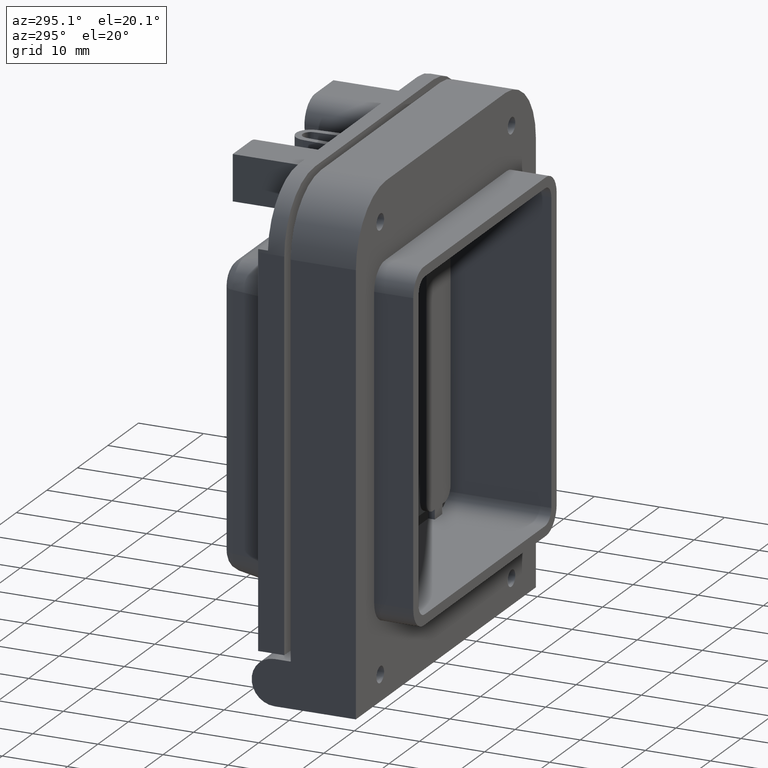
[diagram: clean part render]
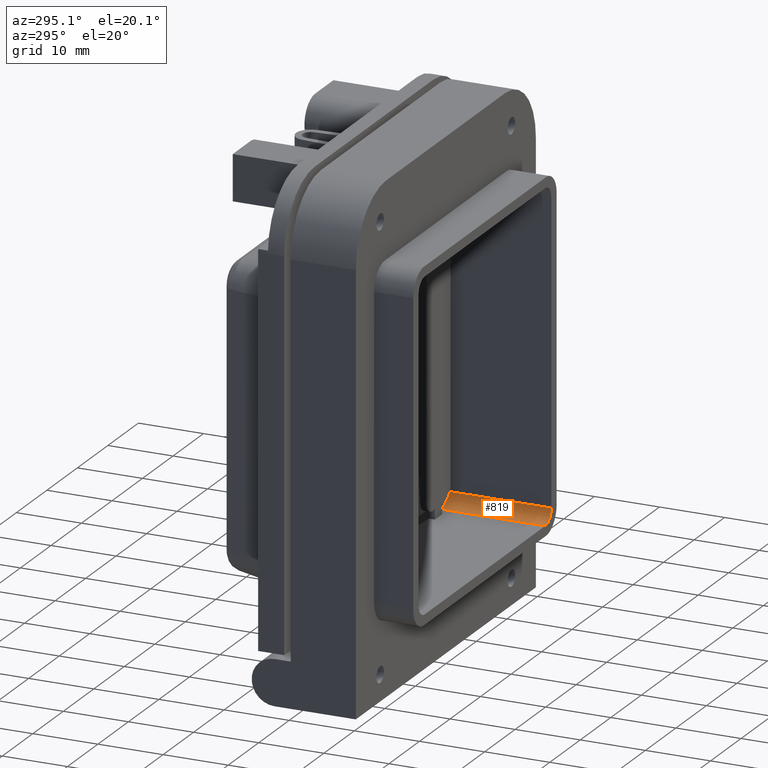
[diagram: same view with one face highlighted and labeled with its STEP entity id]
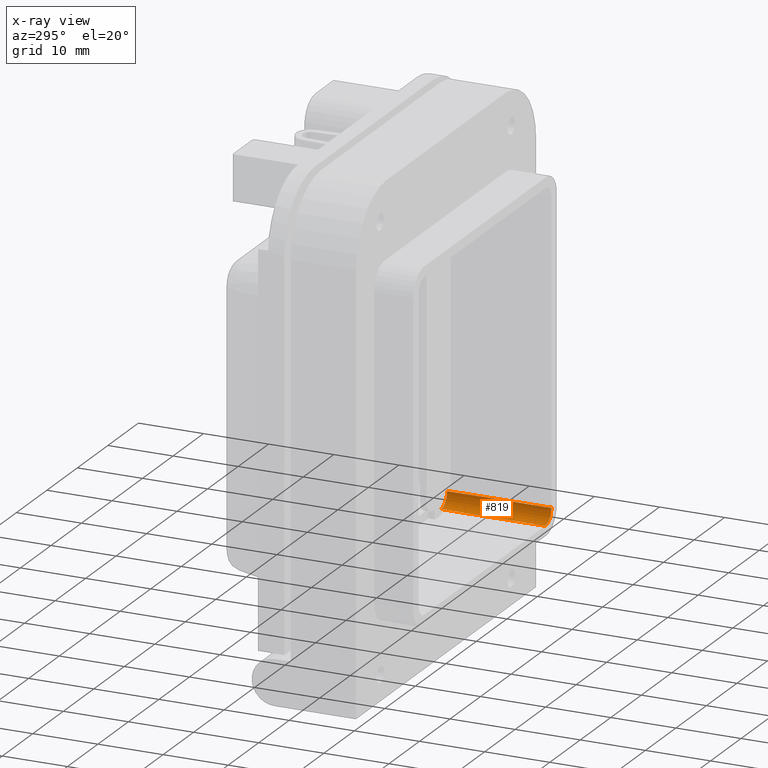
[diagram: x-ray of the same camera — body ghosted, the highlighted face saturated]
A machine part, auxiliary view. The second image highlights one B-rep face of the part: STEP entity #819.
The next image is the same camera in x-ray: the body ghosted, the highlighted face saturated — about 0% of this face is hidden behind the body in this view.
In plain terms, the highlighted cylindrical surface (edge-blend (fillet) strip) has radius 2 mm, axis along (-0, 1, -0).
Its self-contained STEP definition (entity closure, byte-faithful):
#186 = EDGE_CURVE ( 'NONE', #187, #6824, #2137, .T. ) ;
#187 = VERTEX_POINT ( 'NONE', #2132 ) ;
#294 = VERTEX_POINT ( 'NONE', #2438 ) ;
#785 = EDGE_CURVE ( 'NONE', #294, #6825, #3693, .T. ) ;
#819 = ADVANCED_FACE ( 'NONE', ( #3722 ), #3764, .F. ) ;
#820 = EDGE_LOOP ( 'NONE', ( #821, #823, #824, #825 ) ) ;
#821 = ORIENTED_EDGE ( 'NONE', *, *, #822, .T. ) ;
#822 = EDGE_CURVE ( 'NONE', #294, #187, #3758, .T. ) ;
#823 = ORIENTED_EDGE ( 'NONE', *, *, #186, .T. ) ;
#824 = ORIENTED_EDGE ( 'NONE', *, *, #6827, .F. ) ;
#825 = ORIENTED_EDGE ( 'NONE', *, *, #785, .F. ) ;
#2132 = CARTESIAN_POINT ( 'NONE',  ( 21.74999999999999600, 10.00000000000000000, -22.99999999999997900 ) ) ;
#2133 = DIRECTION ( 'NONE',  ( 0.0000000000000000000, 0.0000000000000000000, -1.000000000000000000 ) ) ;
#2134 = DIRECTION ( 'NONE',  ( -0.0000000000000000000, 1.000000000000000000, -0.0000000000000000000 ) ) ;
#2135 = CARTESIAN_POINT ( 'NONE',  ( 19.74999999999999600, 10.00000000000000000, -22.99999999999999300 ) ) ;
#2136 = AXIS2_PLACEMENT_3D ( 'NONE', #2135, #2134, #2133 ) ;
#2137 = CIRCLE ( 'NONE', #2136, 2.000000000000001800 ) ;
#2438 = CARTESIAN_POINT ( 'NONE',  ( 21.74999999999999600, -6.000000000000000000, -22.99999999999997900 ) ) ;
#3630 = CARTESIAN_POINT ( 'NONE',  ( 19.74999999999999600, -6.000000000000000000, -22.99999999999999300 ) ) ;
#3690 = DIRECTION ( 'NONE',  ( 0.0000000000000000000, 0.0000000000000000000, -1.000000000000000000 ) ) ;
#3691 = DIRECTION ( 'NONE',  ( -0.0000000000000000000, 1.000000000000000000, -0.0000000000000000000 ) ) ;
#3692 = AXIS2_PLACEMENT_3D ( 'NONE', #3630, #3691, #3690 ) ;
#3693 = CIRCLE ( 'NONE', #3692, 2.000000000000001800 ) ;
#3722 = FACE_OUTER_BOUND ( 'NONE', #820, .T. ) ;
#3755 = DIRECTION ( 'NONE',  ( -0.0000000000000000000, 1.000000000000000000, -0.0000000000000000000 ) ) ;
#3756 = VECTOR ( 'NONE', #3755, 1000.000000000000000 ) ;
#3757 = CARTESIAN_POINT ( 'NONE',  ( 21.74999999999999600, -6.001000000000001200, -22.99999999999997900 ) ) ;
#3758 = LINE ( 'NONE', #3757, #3756 ) ;
#3760 = DIRECTION ( 'NONE',  ( 0.0000000000000000000, 0.0000000000000000000, 1.000000000000000000 ) ) ;
#3761 = DIRECTION ( 'NONE',  ( -0.0000000000000000000, 1.000000000000000000, -0.0000000000000000000 ) ) ;
#3762 = CARTESIAN_POINT ( 'NONE',  ( 19.74999999999999600, -6.001000000000001200, -22.99999999999999300 ) ) ;
#3763 = AXIS2_PLACEMENT_3D ( 'NONE', #3762, #3761, #3760 ) ;
#3764 = CYLINDRICAL_SURFACE ( 'NONE', #3763, 2.000000000000001800 ) ;
#6680 = DIRECTION ( 'NONE',  ( -0.0000000000000000000, 1.000000000000000000, -0.0000000000000000000 ) ) ;
#6681 = VECTOR ( 'NONE', #6680, 1000.000000000000000 ) ;
#6682 = CARTESIAN_POINT ( 'NONE',  ( 19.74999999999998200, -6.001000000000001200, -24.99999999999999300 ) ) ;
#6683 = LINE ( 'NONE', #6682, #6681 ) ;
#6685 = CARTESIAN_POINT ( 'NONE',  ( 19.74999999999999600, -6.000000000000000000, -24.99999999999999300 ) ) ;
#6686 = CARTESIAN_POINT ( 'NONE',  ( 19.74999999999998200, 10.00000000000000000, -24.99999999999999300 ) ) ;
#6824 = VERTEX_POINT ( 'NONE', #6686 ) ;
#6825 = VERTEX_POINT ( 'NONE', #6685 ) ;
#6827 = EDGE_CURVE ( 'NONE', #6825, #6824, #6683, .T. ) ;